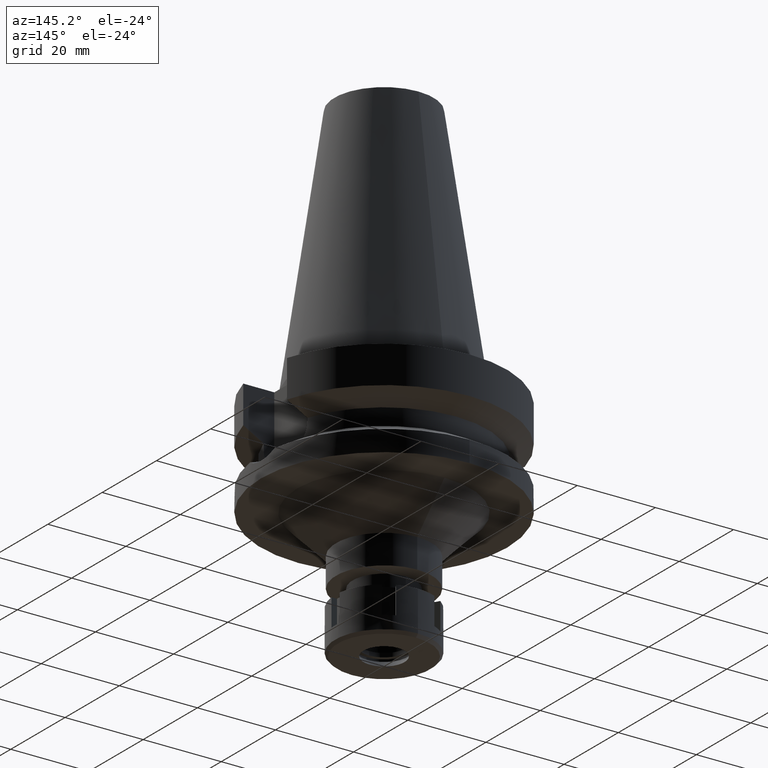
[diagram: clean part render]
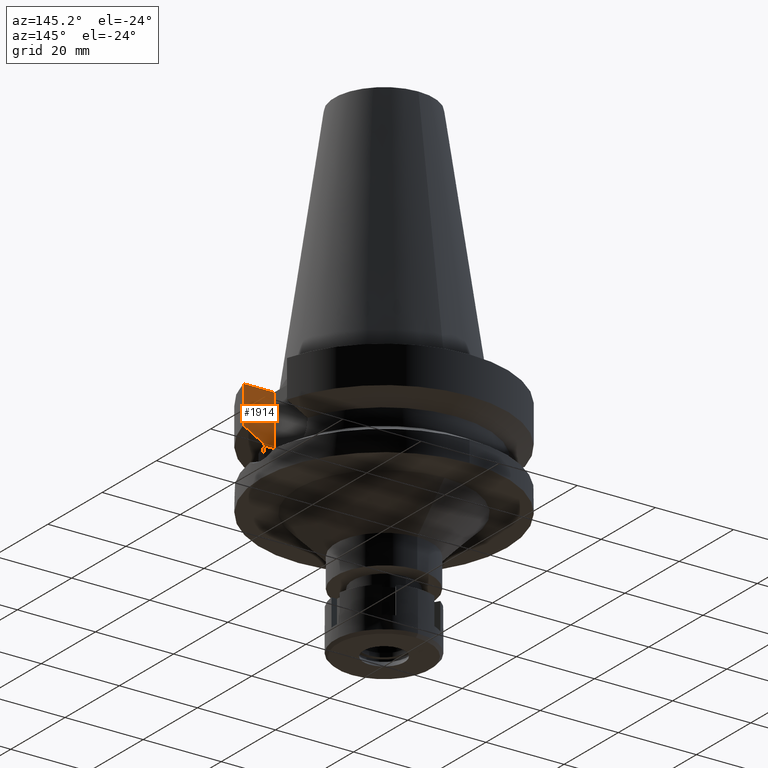
[diagram: same view with one face highlighted and labeled with its STEP entity id]
A machine part, auxiliary view. The second image highlights one B-rep face of the part: STEP entity #1914.
In plain terms, the highlighted planar face has unit normal (0, -1, 0).
Its self-contained STEP definition (entity closure, byte-faithful):
#42 = CARTESIAN_POINT ( 'NONE',  ( 25.24772266958000344, -8.050000000000000711, -14.45225699861000024 ) ) ;
#219 = PLANE ( 'NONE',  #1060 ) ;
#354 = CARTESIAN_POINT ( 'NONE',  ( 30.45402272279000044, -8.049999999999000622, -11.56550565266999975 ) ) ;
#363 = DIRECTION ( 'NONE',  ( 1.000000000000000000, 3.573249715389999860E-14, 0.0000000000000000000 ) ) ;
#454 = VECTOR ( 'NONE', #552, 1000.000000000000114 ) ;
#491 = EDGE_CURVE ( 'NONE', #1468, #3366, #2142, .T. ) ;
#552 = DIRECTION ( 'NONE',  ( -1.154240390162997835E-07, -4.366610549171994681E-07, -0.9999999999998979705 ) ) ;
#632 = CARTESIAN_POINT ( 'NONE',  ( 26.83757623334959419, -8.050003099312620591, -13.57773025311827020 ) ) ;
#770 = VECTOR ( 'NONE', #1706, 1000.000000000000000 ) ;
#807 = EDGE_CURVE ( 'NONE', #1641, #1468, #1737, .T. ) ;
#885 = DIRECTION ( 'NONE',  ( 0.0000000000000000000, 0.0000000000000000000, 1.000000000000000000 ) ) ;
#908 = LINE ( 'NONE', #2592, #770 ) ;
#928 = VERTEX_POINT ( 'NONE', #2046 ) ;
#1022 = VERTEX_POINT ( 'NONE', #2438 ) ;
#1060 = AXIS2_PLACEMENT_3D ( 'NONE', #3453, #1796, #3487 ) ;
#1062 = VERTEX_POINT ( 'NONE', #2149 ) ;
#1172 = LINE ( 'NONE', #3077, #3552 ) ;
#1193 = ORIENTED_EDGE ( 'NONE', *, *, #807, .T. ) ;
#1274 = CARTESIAN_POINT ( 'NONE',  ( 30.45402272279000044, -8.049999999999000622, -11.56550565266999975 ) ) ;
#1334 = CARTESIAN_POINT ( 'NONE',  ( 22.50000000000000000, -8.050000000000000711, -2.000000000000000000 ) ) ;
#1379 = ORIENTED_EDGE ( 'NONE', *, *, #2601, .F. ) ;
#1468 = VERTEX_POINT ( 'NONE', #2598 ) ;
#1619 = B_SPLINE_CURVE_WITH_KNOTS ( 'NONE', 3,
 ( #42, #632, #2001, #354 ),
 .UNSPECIFIED., .F., .F.,
 ( 4, 4 ),
 ( 0.0000000000000000000, 1.000000000000000000 ),
 .UNSPECIFIED. ) ;
#1628 = CARTESIAN_POINT ( 'NONE',  ( 30.45402272279000044, -8.050000000000000711, -2.000000000000000000 ) ) ;
#1641 = VERTEX_POINT ( 'NONE', #1334 ) ;
#1667 = EDGE_CURVE ( 'NONE', #928, #1022, #1172, .T. ) ;
#1685 = EDGE_CURVE ( 'NONE', #1062, #1641, #3356, .T. ) ;
#1706 = DIRECTION ( 'NONE',  ( -1.000000000000000000, -1.551559937893000172E-14, 0.0000000000000000000 ) ) ;
#1736 = EDGE_CURVE ( 'NONE', #1022, #1062, #908, .T. ) ;
#1737 = LINE ( 'NONE', #3097, #1870 ) ;
#1796 = DIRECTION ( 'NONE',  ( 0.0000000000000000000, -1.000000000000000000, 0.0000000000000000000 ) ) ;
#1846 = ORIENTED_EDGE ( 'NONE', *, *, #1667, .T. ) ;
#1870 = VECTOR ( 'NONE', #363, 1000.000000000000000 ) ;
#1914 = ADVANCED_FACE ( 'NONE', ( #2647 ), #219, .F. ) ;
#2001 = CARTESIAN_POINT ( 'NONE',  ( 28.57294846989575277, -8.050008346966565753, -12.61548047738636313 ) ) ;
#2046 = CARTESIAN_POINT ( 'NONE',  ( 25.24772266958000344, -8.050000000000000711, -14.45225699861000024 ) ) ;
#2142 = LINE ( 'NONE', #1628, #454 ) ;
#2149 = CARTESIAN_POINT ( 'NONE',  ( 22.50000000000000000, -8.050000000000000711, -14.94999999999999929 ) ) ;
#2340 = VECTOR ( 'NONE', #885, 1000.000000000000000 ) ;
#2353 = ORIENTED_EDGE ( 'NONE', *, *, #491, .T. ) ;
#2438 = CARTESIAN_POINT ( 'NONE',  ( 25.24772266958000344, -8.050000000000000711, -14.94999999999999929 ) ) ;
#2537 = DIRECTION ( 'NONE',  ( 9.915724667653715890E-07, 3.109933156125913210E-06, -0.9999999999946724838 ) ) ;
#2592 = CARTESIAN_POINT ( 'NONE',  ( 25.24772266958000344, -8.050000000000000711, -14.94999999999999929 ) ) ;
#2598 = CARTESIAN_POINT ( 'NONE',  ( 30.45402272279000044, -8.050000000000000711, -2.000000000000000000 ) ) ;
#2601 = EDGE_CURVE ( 'NONE', #928, #3366, #1619, .T. ) ;
#2647 = FACE_OUTER_BOUND ( 'NONE', #2968, .T. ) ;
#2833 = CARTESIAN_POINT ( 'NONE',  ( 22.50000000000000000, -8.050000000000000711, -14.94999999999999929 ) ) ;
#2861 = ORIENTED_EDGE ( 'NONE', *, *, #1685, .T. ) ;
#2950 = ORIENTED_EDGE ( 'NONE', *, *, #1736, .T. ) ;
#2968 = EDGE_LOOP ( 'NONE', ( #2950, #2861, #1193, #2353, #1379, #1846 ) ) ;
#3077 = CARTESIAN_POINT ( 'NONE',  ( 25.24772217602000168, -8.050001547984001249, -14.45224517063999947 ) ) ;
#3097 = CARTESIAN_POINT ( 'NONE',  ( 22.50000000000000000, -8.050000000000000711, -2.000000000000000000 ) ) ;
#3356 = LINE ( 'NONE', #2833, #2340 ) ;
#3366 = VERTEX_POINT ( 'NONE', #1274 ) ;
#3453 = CARTESIAN_POINT ( 'NONE',  ( 22.50000000000000000, -8.050000000000000711, -2.000000000000000000 ) ) ;
#3487 = DIRECTION ( 'NONE',  ( 0.0000000000000000000, 0.0000000000000000000, -1.000000000000000000 ) ) ;
#3552 = VECTOR ( 'NONE', #2537, 1000.000000000000114 ) ;